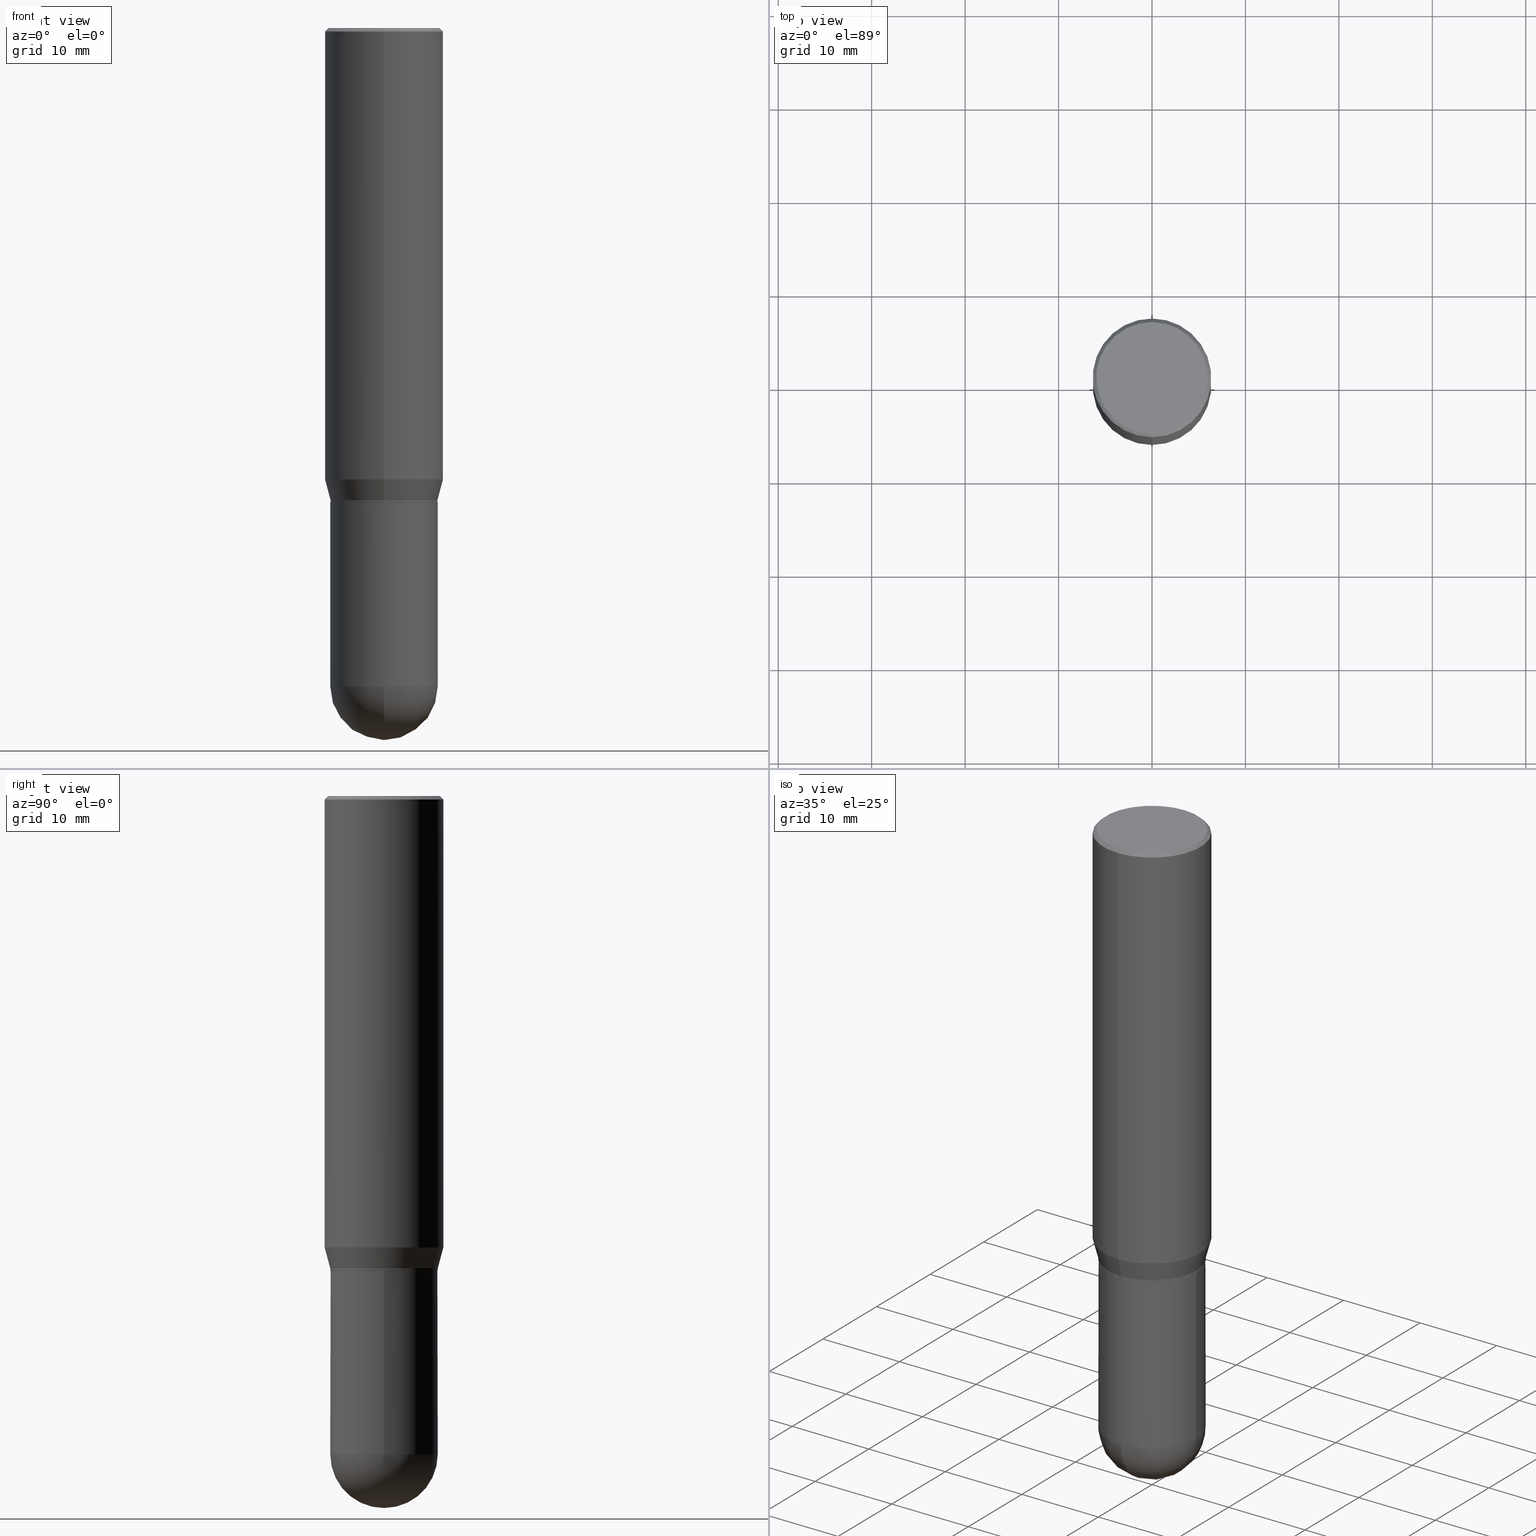
[diagram: canonical four-view strip — front | top / right | iso, engineering-drawing reading convention]
A machine part, canonical four-view strip (front | top / right | iso — engineering-drawing reading convention). The complete STEP part file that produces these views, byte-faithful:
ISO-10303-21;
HEADER;
FILE_DESCRIPTION (( 'STEP AP203' ),
    '1' );
FILE_NAME ('30558.STEP',
    '2024-03-08T15:33:19',
    ( '' ),
    ( '' ),
    'SwSTEP 2.0',
    'SolidWorks 2023',
    '' );
FILE_SCHEMA (( 'CONFIG_CONTROL_DESIGN' ));
ENDSEC;

DATA;
#1 = DIRECTION ( 'NONE',  ( -2.445468806185136597E-29, 3.491481338843145583E-15, 1.000000000000000000 ) ) ;
#2 = ORIENTED_EDGE ( 'NONE', *, *, #37, .F. ) ;
#3 = CYLINDRICAL_SURFACE ( 'NONE', #443, 0.2500000000000000000 ) ;
#4 = DIRECTION ( 'NONE',  ( -6.982962677686265922E-15, -1.000000000000000000, 3.491643216902136408E-15 ) ) ;
#5 = CARTESIAN_POINT ( 'NONE',  ( -1.581990194629823332E-15, -0.2265499999999999736, 7.908761982676923544E-16 ) ) ;
#6 = DIRECTION ( 'NONE',  ( -2.445835289349632530E-29, 3.490956514092661325E-15, 1.000000000000000000 ) ) ;
#7 = AXIS2_PLACEMENT_3D ( 'NONE', #184, #34, #299 ) ;
#8 = CIRCLE ( 'NONE', #367, 0.2265500000000000291 ) ;
#9 = VERTEX_POINT ( 'NONE', #291 ) ;
#10 = LOCAL_TIME ( 10, 33, 19.00000000000000000, #489 ) ;
#11 = PERSON_AND_ORGANIZATION ( #234, #393 ) ;
#12 = CARTESIAN_POINT ( 'NONE',  ( 6.782385460514168389E-29, -9.683448919214523504E-15, -2.773450000000000415 ) ) ;
#13 = DATE_TIME_ROLE ( 'creation_date' ) ;
#14 = EDGE_LOOP ( 'NONE', ( #251, #129, #88, #284 ) ) ;
#15 = ORIENTED_EDGE ( 'NONE', *, *, #84, .T. ) ;
#16 = VECTOR ( 'NONE', #389, 39.37007874015748143 ) ;
#17 = LOCAL_TIME ( 10, 33, 19.00000000000000000, #491 ) ;
#18 = PERSON_AND_ORGANIZATION_ROLE ( 'creator' ) ;
#19 = VERTEX_POINT ( 'NONE', #212 ) ;
#20 = DATE_AND_TIME ( #369, #93 ) ;
#21 = CARTESIAN_POINT ( 'NONE',  ( -1.581990194629774028E-15, -0.2265500000000069125, -1.999499999999999611 ) ) ;
#22 = VERTEX_POINT ( 'NONE', #21 ) ;
#23 = AXIS2_PLACEMENT_3D ( 'NONE', #300, #304, #154 ) ;
#24 = AXIS2_PLACEMENT_3D ( 'NONE', #26, #71, #114 ) ;
#25 = APPROVAL_PERSON_ORGANIZATION ( #99, #301, #407 ) ;
#26 = CARTESIAN_POINT ( 'NONE',  ( 6.784390825462294501E-29, -9.680577122470524352E-15, -2.773450000000000415 ) ) ;
#27 = DIRECTION ( 'NONE',  ( -2.445835289349632811E-29, 3.490956514092661325E-15, 1.000000000000000000 ) ) ;
#28 = CARTESIAN_POINT ( 'NONE',  ( 0.2265500000000000291, -8.564952872316116075E-15, -2.000000000000000444 ) ) ;
#29 = FACE_OUTER_BOUND ( 'NONE', #512, .T. ) ;
#30 = CARTESIAN_POINT ( 'NONE',  ( 4.867212225805769554E-29, -6.947003463044396900E-15, -1.990000000000000435 ) ) ;
#31 = DIRECTION ( 'NONE',  ( -1.000000000000000000, 6.982962677686265922E-15, -4.883557194083112901E-29 ) ) ;
#32 = AXIS2_PLACEMENT_3D ( 'NONE', #338, #224, #181 ) ;
#33 = DIRECTION ( 'NONE',  ( -2.445835289349632530E-29, 3.490956514092661325E-15, 1.000000000000000000 ) ) ;
#34 = DIRECTION ( 'NONE',  ( 2.438088387897960049E-29, -3.491481338843145188E-15, -1.000000000000000000 ) ) ;
#35 = DIRECTION ( 'NONE',  ( -2.445468806185136877E-29, 3.491481338843145188E-15, 1.000000000000000000 ) ) ;
#36 = LINE ( 'NONE', #156, #383 ) ;
#37 = EDGE_CURVE ( 'NONE', #9, #400, #176, .T. ) ;
#38 = DIRECTION ( 'NONE',  ( -2.445835289349632530E-29, 3.490956514092661325E-15, 1.000000000000000000 ) ) ;
#39 = LINE ( 'NONE', #81, #16 ) ;
#40 = CIRCLE ( 'NONE', #430, 0.2265500000000000291 ) ;
#41 = CARTESIAN_POINT ( 'NONE',  ( 3.668752934024485440E-31, -5.236434771139045457E-17, -0.01500000000000015210 ) ) ;
#42 = DIRECTION ( 'NONE',  ( 1.000000000000000000, -6.982962677686266711E-15, 0.000000000000000000 ) ) ;
#43 = EDGE_CURVE ( 'NONE', #286, #22, #464, .T. ) ;
#44 = ORIENTED_EDGE ( 'NONE', *, *, #216, .F. ) ;
#45 = FACE_OUTER_BOUND ( 'NONE', #14, .T. ) ;
#46 = ORIENTED_EDGE ( 'NONE', *, *, #470, .T. ) ;
#47 =( CONVERSION_BASED_UNIT ( 'INCH', #155 ) LENGTH_UNIT ( ) NAMED_UNIT ( #215 ) );
#48 = DIRECTION ( 'NONE',  ( -2.445835289349632530E-29, 3.490956514092661325E-15, 1.000000000000000000 ) ) ;
#49 = ORIENTED_EDGE ( 'NONE', *, *, #280, .T. ) ;
#50 = ADVANCED_FACE ( 'NONE', ( #265 ), #314, .T. ) ;
#51 = APPLICATION_PROTOCOL_DEFINITION ( 'international standard', 'config_control_design', 1994, #311 ) ;
#52 = ORIENTED_EDGE ( 'NONE', *, *, #53, .T. ) ;
#53 = EDGE_CURVE ( 'NONE', #363, #278, #239, .T. ) ;
#54 = ORIENTED_EDGE ( 'NONE', *, *, #322, .F. ) ;
#55 = APPROVAL_STATUS ( 'not_yet_approved' ) ;
#56 = ORIENTED_EDGE ( 'NONE', *, *, #179, .T. ) ;
#57 = AXIS2_PLACEMENT_3D ( 'NONE', #30, #500, #374 ) ;
#58 = COORDINATED_UNIVERSAL_TIME_OFFSET ( 5, 0, .BEHIND. ) ;
#59 = ORIENTED_EDGE ( 'NONE', *, *, #470, .F. ) ;
#60 = ADVANCED_FACE ( 'NONE', ( #218 ), #293, .T. ) ;
#61 = ORIENTED_EDGE ( 'NONE', *, *, #115, .T. ) ;
#62 = CARTESIAN_POINT ( 'NONE',  ( -1.715124499442882299E-15, -0.2500000000000000555, -0.01499999999999927953 ) ) ;
#63 = CARTESIAN_POINT ( 'NONE',  ( -1.578498713290931613E-15, -0.2260500000000069953, -1.999999999999999334 ) ) ;
#64 = AXIS2_PLACEMENT_3D ( 'NONE', #189, #33, #257 ) ;
#65 = FACE_OUTER_BOUND ( 'NONE', #350, .T. ) ;
#66 = LINE ( 'NONE', #221, #108 ) ;
#67 = PRODUCT_DEFINITION ( 'UNKNOWN', '', #307, #138 ) ;
#68 = CARTESIAN_POINT ( 'NONE',  ( 1.609734567864506586E-15, 0.2265499999999999736, -7.908761982676923544E-16 ) ) ;
#69 = CARTESIAN_POINT ( 'NONE',  ( -1.745740669421565889E-15, -0.2500000000000000555, -0.01499999999999927953 ) ) ;
#70 = CIRCLE ( 'NONE', #32, 0.2265499999999999736 ) ;
#71 = DIRECTION ( 'NONE',  ( -1.000000000000000000, 7.105427357601001070E-15, -4.926315508542082329E-29 ) ) ;
#72 = DIRECTION ( 'NONE',  ( -6.982962677686265922E-15, -1.000000000000000000, 3.617543138818270030E-15 ) ) ;
#73 = EDGE_CURVE ( 'NONE', #9, #286, #185, .T. ) ;
#74 = FACE_OUTER_BOUND ( 'NONE', #490, .T. ) ;
#75 = DIRECTION ( 'NONE',  ( -6.982962677686265922E-15, -1.000000000000000000, 3.490956514092661325E-15 ) ) ;
#76 = DIRECTION ( 'NONE',  ( -2.445835289349632530E-29, 3.490956514092661325E-15, 1.000000000000000000 ) ) ;
#77 = APPLICATION_CONTEXT ( 'configuration controlled 3d designs of mechanical parts and assemblies' ) ;
#78 = CARTESIAN_POINT ( 'NONE',  ( 0.000000000000000000, 0.000000000000000000, 0.000000000000000000 ) ) ;
#79 = CIRCLE ( 'NONE', #305, 0.2265499999999999459 ) ;
#80 = AXIS2_PLACEMENT_3D ( 'NONE', #41, #401, #4 ) ;
#81 = CARTESIAN_POINT ( 'NONE',  ( 1.745740669421566875E-15, 0.2499999999999999167, -0.01500000000000102467 ) ) ;
#82 = EDGE_LOOP ( 'NONE', ( #365, #370 ) ) ;
#83 = DIRECTION ( 'NONE',  ( -2.445468806185136877E-29, 3.491481338843145188E-15, 1.000000000000000000 ) ) ;
#84 = EDGE_CURVE ( 'NONE', #440, #19, #79, .T. ) ;
#85 = ORIENTED_EDGE ( 'NONE', *, *, #329, .F. ) ;
#86 = LINE ( 'NONE', #230, #477 ) ;
#87 = CARTESIAN_POINT ( 'NONE',  ( 4.653161058064362785E-29, -6.641486848074505255E-15, -1.902483408562510414 ) ) ;
#88 = ORIENTED_EDGE ( 'NONE', *, *, #473, .F. ) ;
#89 = MANIFOLD_SOLID_BREP ( 'Body-Move/Copy2[1]', #141 ) ;
#90 = AXIS2_PLACEMENT_3D ( 'NONE', #190, #422, #72 ) ;
#91 = AXIS2_PLACEMENT_3D ( 'NONE', #474, #193, #351 ) ;
#92 = ORIENTED_EDGE ( 'NONE', *, *, #115, .F. ) ;
#93 = LOCAL_TIME ( 10, 33, 19.00000000000000000, #58 ) ;
#94 = EDGE_CURVE ( 'NONE', #22, #400, #373, .T. ) ;
#95 = PERSON_AND_ORGANIZATION_ROLE ( 'classification_officer' ) ;
#96 = ORIENTED_EDGE ( 'NONE', *, *, #423, .T. ) ;
#97 = APPROVAL_ROLE ( '' ) ;
#98 = ORIENTED_EDGE ( 'NONE', *, *, #377, .T. ) ;
#99 = PERSON_AND_ORGANIZATION ( #234, #393 ) ;
#100 = AXIS2_PLACEMENT_3D ( 'NONE', #267, #226, #113 ) ;
#101 = ORIENTED_EDGE ( 'NONE', *, *, #209, .T. ) ;
#102 = APPROVAL_DATE_TIME ( #20, #301 ) ;
#103 = ORIENTED_EDGE ( 'NONE', *, *, #236, .T. ) ;
#104 = CARTESIAN_POINT ( 'NONE',  ( 3.715623983178007030E-45, -5.303334122488396270E-31, -1.519163616355385119E-16 ) ) ;
#105 = ORIENTED_EDGE ( 'NONE', *, *, #209, .F. ) ;
#106 = PLANE ( 'NONE',  #157 ) ;
#107 = DIRECTION ( 'NONE',  ( 1.839019923739601893E-15, 0.2588190451025252359, 0.9659258262890670910 ) ) ;
#108 = VECTOR ( 'NONE', #507, 39.37007874015748143 ) ;
#109 = EDGE_CURVE ( 'NONE', #135, #319, #418, .T. ) ;
#110 = CIRCLE ( 'NONE', #64, 0.2500000000000000000 ) ;
#111 = DIRECTION ( 'NONE',  ( -2.445835289349631970E-29, 3.490956514092661325E-15, 1.000000000000000000 ) ) ;
#112 = CARTESIAN_POINT ( 'NONE',  ( 1.776356839400296613E-15, 0.2499999999999933664, -1.902483408562511302 ) ) ;
#113 = DIRECTION ( 'NONE',  ( -6.982962677686265133E-15, -1.000000000000000000, 3.625544782567037861E-15 ) ) ;
#114 = DIRECTION ( 'NONE',  ( -7.105427357601000281E-15, -1.000000000000000000, 0.000000000000000000 ) ) ;
#115 = EDGE_CURVE ( 'NONE', #396, #135, #223, .T. ) ;
#116 = CARTESIAN_POINT ( 'NONE',  ( 1.776356839400250267E-15, 0.2500000000000000000, -8.727391285231653312E-16 ) ) ;
#117 = AXIS2_PLACEMENT_3D ( 'NONE', #87, #275, #167 ) ;
#118 = CYLINDRICAL_SURFACE ( 'NONE', #306, 0.2500000000000000000 ) ;
#119 = DIRECTION ( 'NONE',  ( -2.445835289349632530E-29, 3.490956514092661325E-15, 1.000000000000000000 ) ) ;
#120 = CARTESIAN_POINT ( 'NONE',  ( 6.782385460514168389E-29, -9.683448919214523504E-15, -2.773450000000000415 ) ) ;
#121 = DIRECTION ( 'NONE',  ( -2.445835289349632530E-29, 3.490956514092661325E-15, 1.000000000000000000 ) ) ;
#122 = EDGE_LOOP ( 'NONE', ( #177, #49 ) ) ;
#123 = ADVANCED_FACE ( 'NONE', ( #259 ), #420, .T. ) ;
#124 = DIRECTION ( 'NONE',  ( -2.445835289349632530E-29, 3.490956514092661325E-15, 1.000000000000000000 ) ) ;
#125 = CONICAL_SURFACE ( 'NONE', #413, 0.2260500000000000287, 0.7853981633974824739 ) ;
#126 = ORIENTED_EDGE ( 'NONE', *, *, #73, .T. ) ;
#127 = CYLINDRICAL_SURFACE ( 'NONE', #375, 0.2265499999999999736 ) ;
#128 = DIRECTION ( 'NONE',  ( -2.445468806185136597E-29, 3.491481338843145583E-15, 1.000000000000000000 ) ) ;
#129 = ORIENTED_EDGE ( 'NONE', *, *, #109, .T. ) ;
#130 = DATE_AND_TIME ( #246, #316 ) ;
#131 = EDGE_CURVE ( 'NONE', #313, #170, #66, .T. ) ;
#132 = PERSON_AND_ORGANIZATION ( #234, #393 ) ;
#133 = CONICAL_SURFACE ( 'NONE', #166, 0.2500000000000000000, 0.7853981633974485010 ) ;
#134 = ORIENTED_EDGE ( 'NONE', *, *, #377, .F. ) ;
#135 = VERTEX_POINT ( 'NONE', #112 ) ;
#136 = EDGE_CURVE ( 'NONE', #400, #396, #425, .T. ) ;
#137 = CALENDAR_DATE ( 2024, 8, 3 ) ;
#138 = DESIGN_CONTEXT ( 'detailed design', #77, 'design' ) ;
#139 = ORIENTED_EDGE ( 'NONE', *, *, #423, .F. ) ;
#140 = PERSON_AND_ORGANIZATION ( #234, #393 ) ;
#141 = CLOSED_SHELL ( 'NONE', ( #60, #149, #186, #503, #372 ) ) ;
#142 = ORIENTED_EDGE ( 'NONE', *, *, #280, .F. ) ;
#143 = AXIS2_PLACEMENT_3D ( 'NONE', #436, #228, #388 ) ;
#144 = APPROVAL_PERSON_ORGANIZATION ( #206, #229, #97 ) ;
#145 = CARTESIAN_POINT ( 'NONE',  ( 3.715623983178007030E-45, -5.303334122488396270E-31, -1.519163616355385119E-16 ) ) ;
#146 = ORIENTED_EDGE ( 'NONE', *, *, #195, .T. ) ;
#147 = FACE_OUTER_BOUND ( 'NONE', #242, .T. ) ;
#148 = FACE_OUTER_BOUND ( 'NONE', #308, .T. ) ;
#149 = ADVANCED_FACE ( 'NONE', ( #379 ), #387, .T. ) ;
#150 = DIRECTION ( 'NONE',  ( 2.445835289349631970E-29, -3.490956514092661325E-15, -1.000000000000000000 ) ) ;
#151 = CARTESIAN_POINT ( 'NONE',  ( 0.000000000000000000, 0.000000000000000000, 0.000000000000000000 ) ) ;
#152 = CONICAL_SURFACE ( 'NONE', #57, 0.2265499999999999736, 0.2617993877991505181 ) ;
#153 = CARTESIAN_POINT ( 'NONE',  ( 1.693045703632425956E-15, 0.2265499999999930347, -1.990000000000001101 ) ) ;
#154 = DIRECTION ( 'NONE',  ( 1.000000000000000000, -6.982962677686266711E-15, 0.000000000000000000 ) ) ;
#155 = LENGTH_MEASURE_WITH_UNIT ( LENGTH_MEASURE( 0.02539999999999999897 ), #158 );
#156 = CARTESIAN_POINT ( 'NONE',  ( -1.581990194629774423E-15, -0.2265500000000069125, -1.989999999999999547 ) ) ;
#157 = AXIS2_PLACEMENT_3D ( 'NONE', #182, #111, #382 ) ;
#158 =( LENGTH_UNIT ( ) NAMED_UNIT ( * ) SI_UNIT ( $, .METRE. ) );
#159 = CARTESIAN_POINT ( 'NONE',  ( -0.2265500000000000291, -6.723471230585900551E-15, -2.000000000000000444 ) ) ;
#160 = ORIENTED_EDGE ( 'NONE', *, *, #216, .T. ) ;
#161 = DIRECTION ( 'NONE',  ( -6.982962677686265922E-15, -1.000000000000000000, 3.617543138818270030E-15 ) ) ;
#162 = ORIENTED_EDGE ( 'NONE', *, *, #253, .F. ) ;
#163 = DIRECTION ( 'NONE',  ( -6.982962677686265922E-15, -1.000000000000000000, 3.490956514092661325E-15 ) ) ;
#164 = DIRECTION ( 'NONE',  ( -6.982962677686265133E-15, -1.000000000000000000, 3.625544782567037861E-15 ) ) ;
#165 = DIRECTION ( 'NONE',  ( -2.445835289349632530E-29, 3.490956514092661325E-15, 1.000000000000000000 ) ) ;
#166 = AXIS2_PLACEMENT_3D ( 'NONE', #254, #428, #424 ) ;
#167 = DIRECTION ( 'NONE',  ( -6.982962677686265922E-15, -1.000000000000000000, 3.278217592397115862E-15 ) ) ;
#168 = EDGE_LOOP ( 'NONE', ( #288, #487, #326, #252 ) ) ;
#169 = PERSON_AND_ORGANIZATION_ROLE ( 'design_owner' ) ;
#170 = VERTEX_POINT ( 'NONE', #69 ) ;
#171 = ORIENTED_EDGE ( 'NONE', *, *, #253, .T. ) ;
#172 = EDGE_LOOP ( 'NONE', ( #96, #98, #434, #346, #46 ) ) ;
#173 = PERSON_AND_ORGANIZATION ( #234, #393 ) ;
#174 = ORIENTED_EDGE ( 'NONE', *, *, #385, .F. ) ;
#175 = SHAPE_DEFINITION_REPRESENTATION ( #437, #398 ) ;
#176 = LINE ( 'NONE', #331, #187 ) ;
#177 = ORIENTED_EDGE ( 'NONE', *, *, #385, .T. ) ;
#178 = AXIS2_PLACEMENT_3D ( 'NONE', #349, #48, #75 ) ;
#179 = EDGE_CURVE ( 'NONE', #213, #313, #36, .T. ) ;
#180 = DIRECTION ( 'NONE',  ( -6.982962677686266711E-15, -1.000000000000000000, 3.490956514092661325E-15 ) ) ;
#181 = DIRECTION ( 'NONE',  ( -6.982962677686265922E-15, -1.000000000000000000, 3.617543138818270030E-15 ) ) ;
#182 = CARTESIAN_POINT ( 'NONE',  ( 4.891670578699265621E-29, -6.981913028185323439E-15, -2.000000000000000444 ) ) ;
#183 = DIRECTION ( 'NONE',  ( -4.937700262164715281E-15, -0.7071067811865691111, 0.7071067811865257013 ) ) ;
#184 = CARTESIAN_POINT ( 'NONE',  ( 1.581990194629872833E-15, 0.2265499999999930625, -2.000000000000000888 ) ) ;
#185 = CIRCLE ( 'NONE', #467, 0.2260500000000000287 ) ;
#186 = ADVANCED_FACE ( 'NONE', ( #29 ), #384, .F. ) ;
#187 = VECTOR ( 'NONE', #492, 39.37007874015748854 ) ;
#188 = AXIS2_PLACEMENT_3D ( 'NONE', #343, #342, #334 ) ;
#189 = CARTESIAN_POINT ( 'NONE',  ( 4.653161058064362785E-29, -6.641486848074505255E-15, -1.902483408562510414 ) ) ;
#190 = CARTESIAN_POINT ( 'NONE',  ( 4.867212225805769554E-29, -6.947003463044396900E-15, -1.990000000000000435 ) ) ;
#191 = DIRECTION ( 'NONE',  ( -1.807323732225331717E-15, -0.2588190451025184080, 0.9659258262890689783 ) ) ;
#192 = CC_DESIGN_DATE_AND_TIME_ASSIGNMENT ( #243, #287, ( #268 ) ) ;
#193 = DIRECTION ( 'NONE',  ( -2.445468806185136597E-29, 3.491481338843145583E-15, 1.000000000000000000 ) ) ;
#194 = DIRECTION ( 'NONE',  ( 2.445835289349632530E-29, -3.490956514092661325E-15, -1.000000000000000000 ) ) ;
#195 = EDGE_CURVE ( 'NONE', #400, #22, #70, .T. ) ;
#196 = VERTEX_POINT ( 'NONE', #502 ) ;
#197 = CARTESIAN_POINT ( 'NONE',  ( -1.609734567864438547E-15, -0.2265500000000096603, -2.773449999999999971 ) ) ;
#198 = CARTESIAN_POINT ( 'NONE',  ( 4.891670578699265621E-29, -6.981913028185323439E-15, -2.000000000000000444 ) ) ;
#199 = ORIENTED_EDGE ( 'NONE', *, *, #485, .T. ) ;
#200 = EDGE_CURVE ( 'NONE', #213, #396, #249, .T. ) ;
#201 = DIRECTION ( 'NONE',  ( -2.445468806185136597E-29, 3.491481338843145583E-15, 1.000000000000000000 ) ) ;
#202 = ADVANCED_FACE ( 'NONE', ( #148 ), #399, .T. ) ;
#203 = AXIS2_PLACEMENT_3D ( 'NONE', #272, #121, #432 ) ;
#204 = APPROVAL_DATE_TIME ( #130, #229 ) ;
#205 = ORIENTED_EDGE ( 'NONE', *, *, #403, .T. ) ;
#206 = PERSON_AND_ORGANIZATION ( #234, #393 ) ;
#207 = ORIENTED_EDGE ( 'NONE', *, *, #136, .F. ) ;
#208 = DIRECTION ( 'NONE',  ( 1.000000000000000000, 0.000000000000000000, 0.000000000000000000 ) ) ;
#209 = EDGE_CURVE ( 'NONE', #278, #363, #510, .T. ) ;
#210 = ORIENTED_EDGE ( 'NONE', *, *, #43, .F. ) ;
#211 = DIRECTION ( 'NONE',  ( 0.000000000000000000, 0.000000000000000000, 1.000000000000000000 ) ) ;
#212 = CARTESIAN_POINT ( 'NONE',  ( 1.581990194629891371E-15, 0.2265499999999903147, -2.773450000000000859 ) ) ;
#213 = VERTEX_POINT ( 'NONE', #359 ) ;
#214 = PRODUCT_RELATED_PRODUCT_CATEGORY ( 'detail', '', ( #256 ) ) ;
#215 = DIMENSIONAL_EXPONENTS ( 1.000000000000000000, 0.000000000000000000, 0.000000000000000000, 0.000000000000000000, 0.000000000000000000, 0.000000000000000000, 0.000000000000000000 ) ;
#216 = EDGE_CURVE ( 'NONE', #196, #319, #39, .T. ) ;
#217 = DIRECTION ( 'NONE',  ( -4.851104656540965064E-15, -0.7071067811865501263, -0.7071067811865449082 ) ) ;
#218 = FACE_OUTER_BOUND ( 'NONE', #172, .T. ) ;
#219 = AXIS2_PLACEMENT_3D ( 'NONE', #344, #508, #439 ) ;
#220 = CARTESIAN_POINT ( 'NONE',  ( -1.745740669421519543E-15, -0.2500000000000066058, -1.902483408562509748 ) ) ;
#221 = CARTESIAN_POINT ( 'NONE',  ( -1.745740669421566480E-15, -0.2500000000000000000, 8.727391285231653312E-16 ) ) ;
#222 = DIRECTION ( 'NONE',  ( 1.000000000000000000, -6.982962677686266711E-15, 4.876176775795935793E-29 ) ) ;
#223 = LINE ( 'NONE', #461, #324 ) ;
#224 = DIRECTION ( 'NONE',  ( -2.445835289349632530E-29, 3.490956514092661325E-15, 1.000000000000000000 ) ) ;
#225 = VECTOR ( 'NONE', #35, 39.37007874015748143 ) ;
#226 = DIRECTION ( 'NONE',  ( -2.445835289349632530E-29, 3.490956514092661325E-15, 1.000000000000000000 ) ) ;
#227 = CARTESIAN_POINT ( 'NONE',  ( 0.000000000000000000, 0.000000000000000000, 0.000000000000000000 ) ) ;
#228 = DIRECTION ( 'NONE',  ( -2.445468806185136597E-29, 3.491481338843145583E-15, 1.000000000000000000 ) ) ;
#229 = APPROVAL ( #55, 'UNSPECIFIED' ) ;
#230 = CARTESIAN_POINT ( 'NONE',  ( 0.2265500000000000291, -1.581990194629823924E-15, 1.104697848556569421E-29 ) ) ;
#231 = ORIENTED_EDGE ( 'NONE', *, *, #94, .F. ) ;
#232 = CIRCLE ( 'NONE', #296, 0.2265499999999999736 ) ;
#233 = CARTESIAN_POINT ( 'NONE',  ( 4.867212225805769554E-29, -6.947003463044396900E-15, -1.990000000000000435 ) ) ;
#234 = PERSON ( 'UNSPECIFIED', 'UNSPECIFIED', 'UNSPECIFIED', ('UNSPECIFIED'), ('UNSPECIFIED'), ('UNSPECIFIED') ) ;
#235 = EDGE_LOOP ( 'NONE', ( #447, #406, #237, #139 ) ) ;
#236 = EDGE_CURVE ( 'NONE', #286, #9, #240, .T. ) ;
#237 = ORIENTED_EDGE ( 'NONE', *, *, #485, .F. ) ;
#238 = DIRECTION ( 'NONE',  ( 1.000000000000000000, -6.982962677686266711E-15, 0.000000000000000000 ) ) ;
#239 = CIRCLE ( 'NONE', #23, 0.2265500000000000291 ) ;
#240 = CIRCLE ( 'NONE', #260, 0.2260500000000000287 ) ;
#241 = CC_DESIGN_SECURITY_CLASSIFICATION ( #268, ( #307 ) ) ;
#242 = EDGE_LOOP ( 'NONE', ( #134, #199, #408, #455, #105 ) ) ;
#243 = DATE_AND_TIME ( #137, #10 ) ;
#244 = ORIENTED_EDGE ( 'NONE', *, *, #179, .F. ) ;
#245 = EDGE_CURVE ( 'NONE', #313, #135, #468, .T. ) ;
#246 = CALENDAR_DATE ( 2024, 8, 3 ) ;
#247 = VERTEX_POINT ( 'NONE', #318 ) ;
#248 = DATE_AND_TIME ( #409, #17 ) ;
#249 = CIRCLE ( 'NONE', #188, 0.2265499999999999736 ) ;
#250 = AXIS2_PLACEMENT_3D ( 'NONE', #271, #201, #42 ) ;
#251 = ORIENTED_EDGE ( 'NONE', *, *, #245, .T. ) ;
#252 = ORIENTED_EDGE ( 'NONE', *, *, #456, .F. ) ;
#253 = EDGE_CURVE ( 'NONE', #319, #170, #392, .T. ) ;
#254 = CARTESIAN_POINT ( 'NONE',  ( 3.668752934024485440E-31, -5.236434771139045457E-17, -0.01500000000000015210 ) ) ;
#255 = EDGE_LOOP ( 'NONE', ( #142, #442, #310, #44 ) ) ;
#256 = PRODUCT ( '30558', '30558', '', ( #279 ) ) ;
#257 = DIRECTION ( 'NONE',  ( -6.982962677686265922E-15, -1.000000000000000000, 3.278217592397115862E-15 ) ) ;
#258 = AXIS2_PLACEMENT_3D ( 'NONE', #469, #119, #505 ) ;
#259 = FACE_OUTER_BOUND ( 'NONE', #328, .T. ) ;
#260 = AXIS2_PLACEMENT_3D ( 'NONE', #198, #6, #164 ) ;
#261 = CC_DESIGN_PERSON_AND_ORGANIZATION_ASSIGNMENT ( #132, #18, ( #307 ) ) ;
#262 = DIRECTION ( 'NONE',  ( -2.445835289349632530E-29, 3.490956514092661325E-15, 1.000000000000000000 ) ) ;
#263 = DIRECTION ( 'NONE',  ( 1.000000000000000000, -6.982962677686266711E-15, 4.876176775795935793E-29 ) ) ;
#264 = FACE_OUTER_BOUND ( 'NONE', #82, .T. ) ;
#265 = FACE_OUTER_BOUND ( 'NONE', #332, .T. ) ;
#266 = CARTESIAN_POINT ( 'NONE',  ( 1.640996229256272519E-15, 0.2349999999999999867, -8.963329616295446195E-16 ) ) ;
#267 = CARTESIAN_POINT ( 'NONE',  ( 4.891670578699265621E-29, -6.981913028185323439E-15, -2.000000000000000444 ) ) ;
#268 = SECURITY_CLASSIFICATION ( '', '', #327 ) ;
#269 = CARTESIAN_POINT ( 'NONE',  ( 3.668752934024485440E-31, -5.236434771139045457E-17, -0.01500000000000015210 ) ) ;
#270 = EDGE_CURVE ( 'NONE', #415, #445, #40, .T. ) ;
#271 = CARTESIAN_POINT ( 'NONE',  ( 6.782385460514168389E-29, -9.683448919214523504E-15, -2.773450000000000415 ) ) ;
#272 = CARTESIAN_POINT ( 'NONE',  ( 3.668752934024485440E-31, -5.236434771139045457E-17, -0.01500000000000015210 ) ) ;
#273 = AXIS2_PLACEMENT_3D ( 'NONE', #145, #262, #380 ) ;
#274 = FACE_OUTER_BOUND ( 'NONE', #360, .T. ) ;
#275 = DIRECTION ( 'NONE',  ( -2.445835289349632530E-29, 3.490956514092661325E-15, 1.000000000000000000 ) ) ;
#276 = VERTEX_POINT ( 'NONE', #511 ) ;
#277 = DIRECTION ( 'NONE',  ( -2.445835289349632811E-29, 3.490956514092661325E-15, 1.000000000000000000 ) ) ;
#278 = VERTEX_POINT ( 'NONE', #159 ) ;
#279 = MECHANICAL_CONTEXT ( 'NONE', #311, 'mechanical' ) ;
#280 = EDGE_CURVE ( 'NONE', #247, #196, #478, .T. ) ;
#281 = VECTOR ( 'NONE', #498, 39.37007874015748143 ) ;
#282 = PERSON_AND_ORGANIZATION_ROLE ( 'creator' ) ;
#283 = AXIS2_PLACEMENT_3D ( 'NONE', #104, #463, #180 ) ;
#284 = ORIENTED_EDGE ( 'NONE', *, *, #131, .F. ) ;
#285 = PERSON_AND_ORGANIZATION ( #234, #393 ) ;
#286 = VERTEX_POINT ( 'NONE', #378 ) ;
#287 = DATE_TIME_ROLE ( 'classification_date' ) ;
#288 = ORIENTED_EDGE ( 'NONE', *, *, #94, .T. ) ;
#289 = VECTOR ( 'NONE', #277, 39.37007874015748143 ) ;
#290 = LOCAL_TIME ( 10, 33, 19.00000000000000000, #321 ) ;
#291 = CARTESIAN_POINT ( 'NONE',  ( 1.607958211025155638E-15, 0.2260499999999930620, -2.000000000000000888 ) ) ;
#292 = ORIENTED_EDGE ( 'NONE', *, *, #456, .T. ) ;
#293 = CYLINDRICAL_SURFACE ( 'NONE', #451, 0.2265500000000000291 ) ;
#294 = CARTESIAN_POINT ( 'NONE',  ( -0.2265500000000000291, 1.609734567864507178E-15, -1.114384744697249003E-29 ) ) ;
#295 = DIRECTION ( 'NONE',  ( 1.000000000000000000, -6.982962677686265922E-15, 4.883557194083112340E-29 ) ) ;
#296 = AXIS2_PLACEMENT_3D ( 'NONE', #233, #165, #161 ) ;
#297 = CC_DESIGN_DATE_AND_TIME_ASSIGNMENT ( #248, #13, ( #67 ) ) ;
#298 = FACE_OUTER_BOUND ( 'NONE', #122, .T. ) ;
#299 = DIRECTION ( 'NONE',  ( -1.000000000000000000, 6.982962677686265922E-15, -4.876176775795935793E-29 ) ) ;
#300 = CARTESIAN_POINT ( 'NONE',  ( 4.890937612370273754E-29, -6.982962677686291954E-15, -2.000000000000000444 ) ) ;
#301 = APPROVAL ( #412, 'UNSPECIFIED' ) ;
#302 = LINE ( 'NONE', #5, #289 ) ;
#303 = ADVANCED_FACE ( 'NONE', ( #65 ), #133, .T. ) ;
#304 = DIRECTION ( 'NONE',  ( -2.445468806185136597E-29, 3.491481338843145583E-15, 1.000000000000000000 ) ) ;
#305 = AXIS2_PLACEMENT_3D ( 'NONE', #336, #295, #458 ) ;
#306 = AXIS2_PLACEMENT_3D ( 'NONE', #312, #38, #472 ) ;
#307 = PRODUCT_DEFINITION_FORMATION_WITH_SPECIFIED_SOURCE ( 'ANY', '', #256, .NOT_KNOWN. ) ;
#308 = EDGE_LOOP ( 'NONE', ( #207, #146, #292, #411 ) ) ;
#309 = FACE_OUTER_BOUND ( 'NONE', #255, .T. ) ;
#310 = ORIENTED_EDGE ( 'NONE', *, *, #473, .T. ) ;
#311 = APPLICATION_CONTEXT ( 'configuration controlled 3d designs of mechanical parts and assemblies' ) ;
#312 = CARTESIAN_POINT ( 'NONE',  ( 0.000000000000000000, 0.000000000000000000, 0.000000000000000000 ) ) ;
#313 = VERTEX_POINT ( 'NONE', #220 ) ;
#314 = CONICAL_SURFACE ( 'NONE', #90, 0.2265499999999999736, 0.2617993877991505181 ) ;
#315 = CIRCLE ( 'NONE', #91, 0.2265500000000000291 ) ;
#316 = LOCAL_TIME ( 10, 33, 19.00000000000000000, #320 ) ;
#317 = CARTESIAN_POINT ( 'NONE',  ( 0.2265500000000000291, -9.915195993080232639E-15, -2.773450000000000415 ) ) ;
#318 = CARTESIAN_POINT ( 'NONE',  ( -1.663670764459595899E-15, -0.2349999999999999867, 6.684584191762368393E-16 ) ) ;
#319 = VERTEX_POINT ( 'NONE', #454 ) ;
#320 = COORDINATED_UNIVERSAL_TIME_OFFSET ( 5, 0, .BEHIND. ) ;
#321 = COORDINATED_UNIVERSAL_TIME_OFFSET ( 5, 0, .BEHIND. ) ;
#322 = EDGE_CURVE ( 'NONE', #440, #415, #421, .T. ) ;
#323 = EDGE_LOOP ( 'NONE', ( #2, #126, #355, #496 ) ) ;
#324 = VECTOR ( 'NONE', #107, 39.37007874015748854 ) ;
#325 = AXIS2_PLACEMENT_3D ( 'NONE', #366, #211, #208 ) ;
#326 = ORIENTED_EDGE ( 'NONE', *, *, #200, .F. ) ;
#327 = SECURITY_CLASSIFICATION_LEVEL ( 'unclassified' ) ;
#328 = EDGE_LOOP ( 'NONE', ( #103, #368, #231, #210 ) ) ;
#329 = EDGE_CURVE ( 'NONE', #135, #313, #110, .T. ) ;
#330 = APPROVAL_STATUS ( 'not_yet_approved' ) ;
#331 = CARTESIAN_POINT ( 'NONE',  ( 1.606181854185755583E-15, 0.2260499999999930620, -2.000000000000000888 ) ) ;
#332 = EDGE_LOOP ( 'NONE', ( #416, #61, #484, #244 ) ) ;
#333 = LINE ( 'NONE', #62, #452 ) ;
#334 = DIRECTION ( 'NONE',  ( -6.982962677686265922E-15, -1.000000000000000000, 3.617543138818270030E-15 ) ) ;
#335 = PLANE ( 'NONE',  #347 ) ;
#336 = CARTESIAN_POINT ( 'NONE',  ( 6.784390825462294501E-29, -9.680577122470524352E-15, -2.773450000000000415 ) ) ;
#337 = EDGE_CURVE ( 'NONE', #247, #170, #333, .T. ) ;
#338 = CARTESIAN_POINT ( 'NONE',  ( 4.890447661054590482E-29, -6.980167549928277191E-15, -1.999500000000000277 ) ) ;
#339 = CIRCLE ( 'NONE', #250, 0.2265500000000000291 ) ;
#340 = ADVANCED_FACE ( 'NONE', ( #264 ), #106, .F. ) ;
#341 = CYLINDRICAL_SURFACE ( 'NONE', #459, 0.2265500000000000291 ) ;
#342 = DIRECTION ( 'NONE',  ( -2.445835289349632530E-29, 3.490956514092661325E-15, 1.000000000000000000 ) ) ;
#343 = CARTESIAN_POINT ( 'NONE',  ( 4.867212225805769554E-29, -6.947003463044396900E-15, -1.990000000000000435 ) ) ;
#344 = CARTESIAN_POINT ( 'NONE',  ( 6.784390825462294501E-29, -9.680577122470524352E-15, -2.773450000000000415 ) ) ;
#345 = DIRECTION ( 'NONE',  ( 1.000000000000000000, -6.982962677686266711E-15, 0.000000000000000000 ) ) ;
#346 = ORIENTED_EDGE ( 'NONE', *, *, #509, .F. ) ;
#347 = AXIS2_PLACEMENT_3D ( 'NONE', #266, #150, #497 ) ;
#348 = DIRECTION ( 'NONE',  ( 6.982962677686265922E-15, 1.000000000000000000, -3.491643216902136408E-15 ) ) ;
#349 = CARTESIAN_POINT ( 'NONE',  ( 0.000000000000000000, 0.000000000000000000, 0.000000000000000000 ) ) ;
#350 = EDGE_LOOP ( 'NONE', ( #453, #174, #160, #171 ) ) ;
#351 = DIRECTION ( 'NONE',  ( 1.000000000000000000, -6.982962677686266711E-15, 0.000000000000000000 ) ) ;
#352 = ADVANCED_FACE ( 'NONE', ( #417 ), #152, .T. ) ;
#353 = ORIENTED_EDGE ( 'NONE', *, *, #270, .F. ) ;
#354 = CARTESIAN_POINT ( 'NONE',  ( 1.609734567864555693E-15, 0.2265499999999930347, -1.999500000000001165 ) ) ;
#355 = ORIENTED_EDGE ( 'NONE', *, *, #43, .T. ) ;
#356 = CIRCLE ( 'NONE', #273, 0.2349999999999999867 ) ;
#357 = CC_DESIGN_APPROVAL ( #479, ( #307 ) ) ;
#358 =( NAMED_UNIT ( * ) SI_UNIT ( $, .STERADIAN. ) SOLID_ANGLE_UNIT ( ) );
#359 = CARTESIAN_POINT ( 'NONE',  ( -1.581990194629774423E-15, -0.2265500000000069125, -1.989999999999999547 ) ) ;
#360 = EDGE_LOOP ( 'NONE', ( #54, #15, #59, #353 ) ) ;
#361 = ADVANCED_FACE ( 'NONE', ( #298 ), #335, .F. ) ;
#362 = PERSON_AND_ORGANIZATION ( #234, #393 ) ;
#363 = VERTEX_POINT ( 'NONE', #28 ) ;
#364 = APPROVAL_ROLE ( '' ) ;
#365 = ORIENTED_EDGE ( 'NONE', *, *, #236, .F. ) ;
#366 = CARTESIAN_POINT ( 'NONE',  ( 0.000000000000000000, 0.000000000000000000, 0.000000000000000000 ) ) ;
#367 = AXIS2_PLACEMENT_3D ( 'NONE', #120, #1, #238 ) ;
#368 = ORIENTED_EDGE ( 'NONE', *, *, #37, .T. ) ;
#369 = CALENDAR_DATE ( 2024, 8, 3 ) ;
#370 = ORIENTED_EDGE ( 'NONE', *, *, #73, .F. ) ;
#371 = ORIENTED_EDGE ( 'NONE', *, *, #109, .F. ) ;
#372 = ADVANCED_FACE ( 'NONE', ( #147 ), #341, .T. ) ;
#373 = CIRCLE ( 'NONE', #258, 0.2265499999999999736 ) ;
#374 = DIRECTION ( 'NONE',  ( -6.982962677686265922E-15, -1.000000000000000000, 3.617543138818270030E-15 ) ) ;
#375 = AXIS2_PLACEMENT_3D ( 'NONE', #78, #124, #435 ) ;
#376 = DIRECTION ( 'NONE',  ( -6.982962677686265133E-15, -1.000000000000000000, 3.625544782567037861E-15 ) ) ;
#377 = EDGE_CURVE ( 'NONE', #276, #278, #386, .T. ) ;
#378 = CARTESIAN_POINT ( 'NONE',  ( -1.578498713290931613E-15, -0.2260500000000069953, -1.999999999999999334 ) ) ;
#379 = FACE_OUTER_BOUND ( 'NONE', #235, .T. ) ;
#380 = DIRECTION ( 'NONE',  ( -6.982962677686266711E-15, -1.000000000000000000, 3.490956514092661325E-15 ) ) ;
#381 = DIRECTION ( 'NONE',  ( -2.445468806185136597E-29, 3.491481338843145583E-15, 1.000000000000000000 ) ) ;
#382 = DIRECTION ( 'NONE',  ( -6.982962677686265922E-15, -1.000000000000000000, 3.490956514092661325E-15 ) ) ;
#383 = VECTOR ( 'NONE', #191, 39.37007874015748854 ) ;
#384 = PLANE ( 'NONE',  #7 ) ;
#385 = EDGE_CURVE ( 'NONE', #196, #247, #356, .T. ) ;
#386 = LINE ( 'NONE', #294, #225 ) ;
#387 = SPHERICAL_SURFACE ( 'NONE', #476, 0.2265499999999999459 ) ;
#388 = DIRECTION ( 'NONE',  ( 1.000000000000000000, -6.982962677686266711E-15, 0.000000000000000000 ) ) ;
#389 = DIRECTION ( 'NONE',  ( 4.937700262164548831E-15, 0.7071067811865452413, -0.7071067811865497932 ) ) ;
#390 = VECTOR ( 'NONE', #27, 39.37007874015748143 ) ;
#391 = ORIENTED_EDGE ( 'NONE', *, *, #329, .T. ) ;
#392 = CIRCLE ( 'NONE', #80, 0.2500000000000000000 ) ;
#393 = ORGANIZATION ( 'UNSPECIFIED', 'UNSPECIFIED', '' ) ;
#394 = FACE_OUTER_BOUND ( 'NONE', #323, .T. ) ;
#395 = CC_DESIGN_PERSON_AND_ORGANIZATION_ASSIGNMENT ( #362, #282, ( #67 ) ) ;
#396 = VERTEX_POINT ( 'NONE', #153 ) ;
#397 = DIRECTION ( 'NONE',  ( -2.445835289349632530E-29, 3.490956514092661325E-15, 1.000000000000000000 ) ) ;
#398 = ADVANCED_BREP_SHAPE_REPRESENTATION ( '30558', ( #89, #429, #325 ), #414 ) ;
#399 = CYLINDRICAL_SURFACE ( 'NONE', #178, 0.2265499999999999736 ) ;
#400 = VERTEX_POINT ( 'NONE', #354 ) ;
#401 = DIRECTION ( 'NONE',  ( -2.445835289349632530E-29, 3.490956514092661325E-15, 1.000000000000000000 ) ) ;
#402 = CC_DESIGN_PERSON_AND_ORGANIZATION_ASSIGNMENT ( #140, #95, ( #268 ) ) ;
#403 = EDGE_CURVE ( 'NONE', #396, #213, #232, .T. ) ;
#404 = CIRCLE ( 'NONE', #203, 0.2500000000000000000 ) ;
#405 = APPLICATION_PROTOCOL_DEFINITION ( 'international standard', 'config_control_design', 1994, #77 ) ;
#406 = ORIENTED_EDGE ( 'NONE', *, *, #322, .T. ) ;
#407 = APPROVAL_ROLE ( '' ) ;
#408 = ORIENTED_EDGE ( 'NONE', *, *, #270, .T. ) ;
#409 = CALENDAR_DATE ( 2024, 8, 3 ) ;
#410 = UNCERTAINTY_MEASURE_WITH_UNIT (LENGTH_MEASURE( 1.000000000000000082E-05 ), #47, 'distance_accuracy_value', 'NONE');
#411 = ORIENTED_EDGE ( 'NONE', *, *, #403, .F. ) ;
#412 = APPROVAL_STATUS ( 'not_yet_approved' ) ;
#413 = AXIS2_PLACEMENT_3D ( 'NONE', #506, #397, #441 ) ;
#414 =( GEOMETRIC_REPRESENTATION_CONTEXT ( 3 ) GLOBAL_UNCERTAINTY_ASSIGNED_CONTEXT ( ( #410 ) ) GLOBAL_UNIT_ASSIGNED_CONTEXT ( ( #47, #433, #358 ) ) REPRESENTATION_CONTEXT ( 'NONE', 'WORKASPACE' ) );
#415 = VERTEX_POINT ( 'NONE', #197 ) ;
#416 = ORIENTED_EDGE ( 'NONE', *, *, #200, .T. ) ;
#417 = FACE_OUTER_BOUND ( 'NONE', #482, .T. ) ;
#418 = LINE ( 'NONE', #116, #281 ) ;
#419 = CC_DESIGN_PERSON_AND_ORGANIZATION_ASSIGNMENT ( #11, #169, ( #256 ) ) ;
#420 = CONICAL_SURFACE ( 'NONE', #100, 0.2260500000000000287, 0.7853981633974824739 ) ;
#421 = CIRCLE ( 'NONE', #24, 0.2265499999999999459 ) ;
#422 = DIRECTION ( 'NONE',  ( -2.445835289349632530E-29, 3.490956514092661325E-15, 1.000000000000000000 ) ) ;
#423 = EDGE_CURVE ( 'NONE', #19, #276, #8, .T. ) ;
#424 = DIRECTION ( 'NONE',  ( 6.982962677686265922E-15, 1.000000000000000000, -3.491643216902136408E-15 ) ) ;
#425 = LINE ( 'NONE', #68, #390 ) ;
#426 = ADVANCED_FACE ( 'NONE', ( #466 ), #127, .T. ) ;
#427 = DIRECTION ( 'NONE',  ( 6.982962677686265922E-15, 1.000000000000000000, -2.411695425878847213E-15 ) ) ;
#428 = DIRECTION ( 'NONE',  ( 2.445835289349632530E-29, -3.490956514092661325E-15, -1.000000000000000000 ) ) ;
#429 = MANIFOLD_SOLID_BREP ( 'Body-Move/Copy2[2]', #486 ) ;
#430 = AXIS2_PLACEMENT_3D ( 'NONE', #12, #128, #345 ) ;
#431 = CARTESIAN_POINT ( 'NONE',  ( 6.784390825462294501E-29, -9.680577122470524352E-15, -2.773450000000000415 ) ) ;
#432 = DIRECTION ( 'NONE',  ( -6.982962677686265922E-15, -1.000000000000000000, 3.491643216902136408E-15 ) ) ;
#433 =( NAMED_UNIT ( * ) PLANE_ANGLE_UNIT ( ) SI_UNIT ( $, .RADIAN. ) );
#434 = ORIENTED_EDGE ( 'NONE', *, *, #53, .F. ) ;
#435 = DIRECTION ( 'NONE',  ( -6.982962677686265922E-15, -1.000000000000000000, 3.490956514092661325E-15 ) ) ;
#436 = CARTESIAN_POINT ( 'NONE',  ( 4.890937612370273754E-29, -6.982962677686291954E-15, -2.000000000000000444 ) ) ;
#437 = PRODUCT_DEFINITION_SHAPE ( 'NONE', 'NONE',  #67 ) ;
#438 = VECTOR ( 'NONE', #183, 39.37007874015748854 ) ;
#439 = DIRECTION ( 'NONE',  ( 6.982962677686265922E-15, 1.000000000000000000, -2.411695425878847213E-15 ) ) ;
#440 = VERTEX_POINT ( 'NONE', #481 ) ;
#441 = DIRECTION ( 'NONE',  ( -6.982962677686265133E-15, -1.000000000000000000, 3.625544782567037861E-15 ) ) ;
#442 = ORIENTED_EDGE ( 'NONE', *, *, #337, .T. ) ;
#443 = AXIS2_PLACEMENT_3D ( 'NONE', #227, #76, #163 ) ;
#444 = CALENDAR_DATE ( 2024, 8, 3 ) ;
#445 = VERTEX_POINT ( 'NONE', #317 ) ;
#446 = APPROVAL_DATE_TIME ( #483, #479 ) ;
#447 = ORIENTED_EDGE ( 'NONE', *, *, #84, .F. ) ;
#448 = ADVANCED_FACE ( 'NONE', ( #45 ), #118, .T. ) ;
#449 = PERSON_AND_ORGANIZATION_ROLE ( 'design_supplier' ) ;
#450 = ORIENTED_EDGE ( 'NONE', *, *, #131, .T. ) ;
#451 = AXIS2_PLACEMENT_3D ( 'NONE', #151, #381, #263 ) ;
#452 = VECTOR ( 'NONE', #217, 39.37007874015748143 ) ;
#453 = ORIENTED_EDGE ( 'NONE', *, *, #337, .F. ) ;
#454 = CARTESIAN_POINT ( 'NONE',  ( 1.776356839400297007E-15, 0.2499999999999999167, -0.01500000000000102467 ) ) ;
#455 = ORIENTED_EDGE ( 'NONE', *, *, #509, .T. ) ;
#456 = EDGE_CURVE ( 'NONE', #22, #213, #302, .T. ) ;
#457 = DIRECTION ( 'NONE',  ( -2.445468806185136597E-29, 3.491481338843145583E-15, 1.000000000000000000 ) ) ;
#458 = DIRECTION ( 'NONE',  ( 6.982962677686265133E-15, 1.000000000000000000, 0.000000000000000000 ) ) ;
#459 = AXIS2_PLACEMENT_3D ( 'NONE', #504, #457, #222 ) ;
#460 = CC_DESIGN_APPROVAL ( #301, ( #268 ) ) ;
#461 = CARTESIAN_POINT ( 'NONE',  ( 1.609734567864555299E-15, 0.2265499999999930347, -1.990000000000001101 ) ) ;
#462 = ADVANCED_FACE ( 'NONE', ( #309 ), #493, .T. ) ;
#463 = DIRECTION ( 'NONE',  ( -2.445835289349632530E-29, 3.490956514092661325E-15, 1.000000000000000000 ) ) ;
#464 = LINE ( 'NONE', #63, #438 ) ;
#465 = CARTESIAN_POINT ( 'NONE',  ( 4.891670578699265621E-29, -6.981913028185323439E-15, -2.000000000000000444 ) ) ;
#466 = FACE_OUTER_BOUND ( 'NONE', #168, .T. ) ;
#467 = AXIS2_PLACEMENT_3D ( 'NONE', #465, #499, #376 ) ;
#468 = CIRCLE ( 'NONE', #117, 0.2500000000000000000 ) ;
#469 = CARTESIAN_POINT ( 'NONE',  ( 4.890447661054590482E-29, -6.980167549928277191E-15, -1.999500000000000277 ) ) ;
#470 = EDGE_CURVE ( 'NONE', #445, #19, #315, .T. ) ;
#471 = APPROVAL_PERSON_ORGANIZATION ( #285, #479, #364 ) ;
#472 = DIRECTION ( 'NONE',  ( -6.982962677686265922E-15, -1.000000000000000000, 3.490956514092661325E-15 ) ) ;
#473 = EDGE_CURVE ( 'NONE', #170, #319, #404, .T. ) ;
#474 = CARTESIAN_POINT ( 'NONE',  ( 6.782385460514168389E-29, -9.683448919214523504E-15, -2.773450000000000415 ) ) ;
#475 = SPHERICAL_SURFACE ( 'NONE', #219, 0.2265499999999999459 ) ;
#476 = AXIS2_PLACEMENT_3D ( 'NONE', #431, #31, #427 ) ;
#477 = VECTOR ( 'NONE', #83, 39.37007874015748143 ) ;
#478 = CIRCLE ( 'NONE', #283, 0.2349999999999999867 ) ;
#479 = APPROVAL ( #330, 'UNSPECIFIED' ) ;
#480 = ADVANCED_FACE ( 'NONE', ( #394 ), #125, .T. ) ;
#481 = CARTESIAN_POINT ( 'NONE',  ( 7.348098679644216605E-29, -1.045770003316809804E-14, -3.000000000000000444 ) ) ;
#482 = EDGE_LOOP ( 'NONE', ( #92, #205, #56, #85 ) ) ;
#483 = DATE_AND_TIME ( #444, #290 ) ;
#484 = ORIENTED_EDGE ( 'NONE', *, *, #245, .F. ) ;
#485 = EDGE_CURVE ( 'NONE', #276, #415, #339, .T. ) ;
#486 = CLOSED_SHELL ( 'NONE', ( #426, #123, #462, #448, #50, #352, #488, #303, #361, #340, #480, #202 ) ) ;
#487 = ORIENTED_EDGE ( 'NONE', *, *, #136, .T. ) ;
#488 = ADVANCED_FACE ( 'NONE', ( #74 ), #3, .T. ) ;
#489 = COORDINATED_UNIVERSAL_TIME_OFFSET ( 5, 0, .BEHIND. ) ;
#490 = EDGE_LOOP ( 'NONE', ( #371, #391, #450, #162 ) ) ;
#491 = COORDINATED_UNIVERSAL_TIME_OFFSET ( 5, 0, .BEHIND. ) ;
#492 = DIRECTION ( 'NONE',  ( 5.024295867788231995E-15, 0.7071067811865739960, 0.7071067811865208164 ) ) ;
#493 = CONICAL_SURFACE ( 'NONE', #501, 0.2500000000000000000, 0.7853981633974485010 ) ;
#494 = CC_DESIGN_PERSON_AND_ORGANIZATION_ASSIGNMENT ( #173, #449, ( #307 ) ) ;
#495 = CC_DESIGN_APPROVAL ( #229, ( #67 ) ) ;
#496 = ORIENTED_EDGE ( 'NONE', *, *, #195, .F. ) ;
#497 = DIRECTION ( 'NONE',  ( 6.982962677686265922E-15, 1.000000000000000000, -3.490956514092661325E-15 ) ) ;
#498 = DIRECTION ( 'NONE',  ( -2.445835289349632811E-29, 3.490956514092661325E-15, 1.000000000000000000 ) ) ;
#499 = DIRECTION ( 'NONE',  ( -2.445835289349632530E-29, 3.490956514092661325E-15, 1.000000000000000000 ) ) ;
#500 = DIRECTION ( 'NONE',  ( -2.445835289349632530E-29, 3.490956514092661325E-15, 1.000000000000000000 ) ) ;
#501 = AXIS2_PLACEMENT_3D ( 'NONE', #269, #194, #348 ) ;
#502 = CARTESIAN_POINT ( 'NONE',  ( 1.693368449338919598E-15, 0.2349999999999999867, -9.722911424473138138E-16 ) ) ;
#503 = ADVANCED_FACE ( 'NONE', ( #274 ), #475, .T. ) ;
#504 = CARTESIAN_POINT ( 'NONE',  ( 0.000000000000000000, 0.000000000000000000, 0.000000000000000000 ) ) ;
#505 = DIRECTION ( 'NONE',  ( -6.982962677686265922E-15, -1.000000000000000000, 3.617543138818270030E-15 ) ) ;
#506 = CARTESIAN_POINT ( 'NONE',  ( 4.891670578699265621E-29, -6.981913028185323439E-15, -2.000000000000000444 ) ) ;
#507 = DIRECTION ( 'NONE',  ( -2.445835289349632811E-29, 3.490956514092661325E-15, 1.000000000000000000 ) ) ;
#508 = DIRECTION ( 'NONE',  ( -1.000000000000000000, 6.982962677686265922E-15, -4.883557194083112901E-29 ) ) ;
#509 = EDGE_CURVE ( 'NONE', #445, #363, #86, .T. ) ;
#510 = CIRCLE ( 'NONE', #143, 0.2265500000000000291 ) ;
#511 = CARTESIAN_POINT ( 'NONE',  ( -0.2265500000000000291, -6.723471230585900551E-15, -2.773450000000000415 ) ) ;
#512 = EDGE_LOOP ( 'NONE', ( #52, #101 ) ) ;
ENDSEC;
END-ISO-10303-21;
